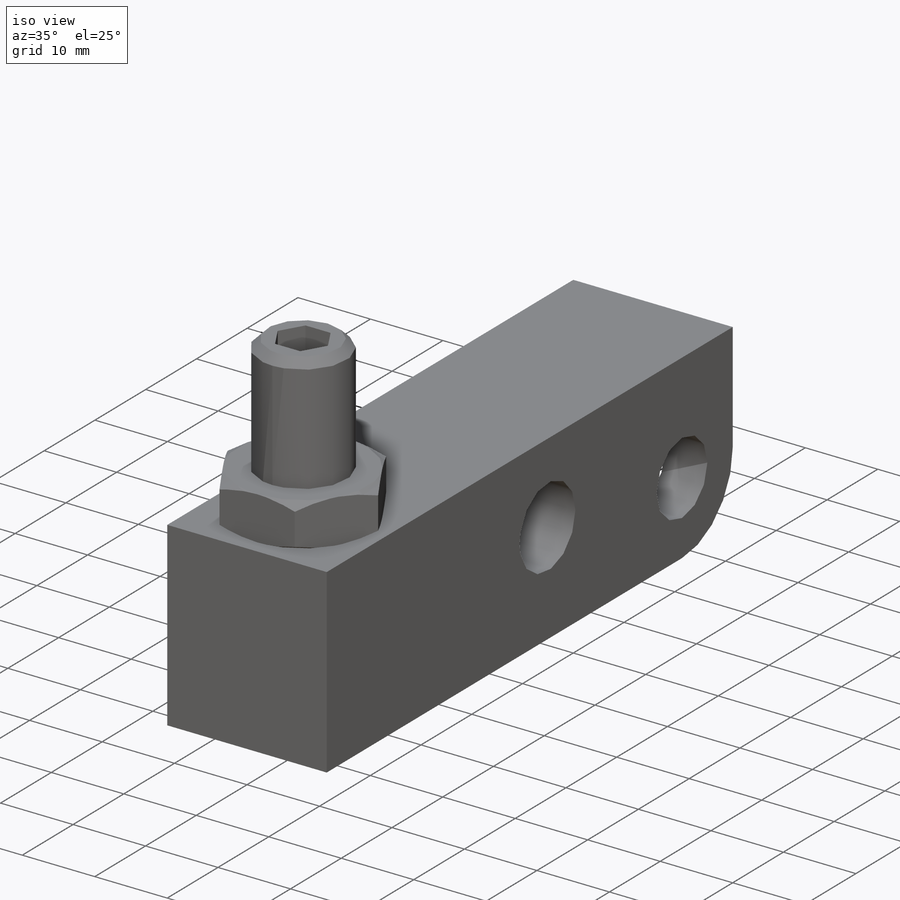
[diagram: iso view]
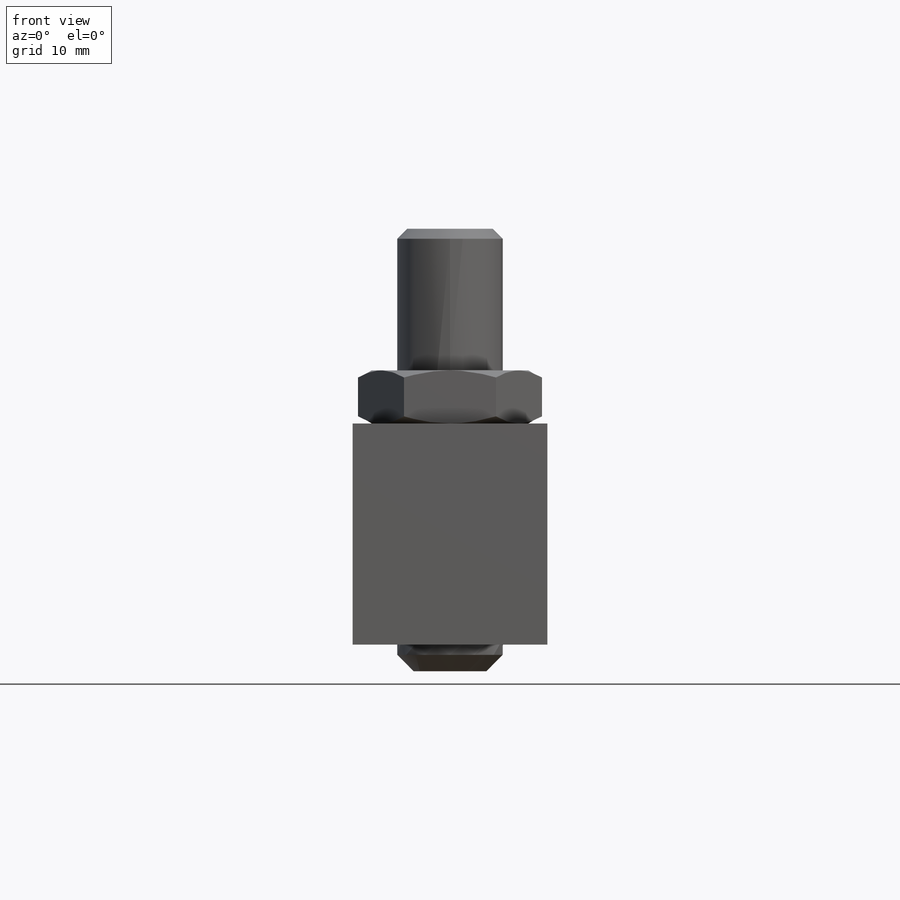
[diagram: front view]
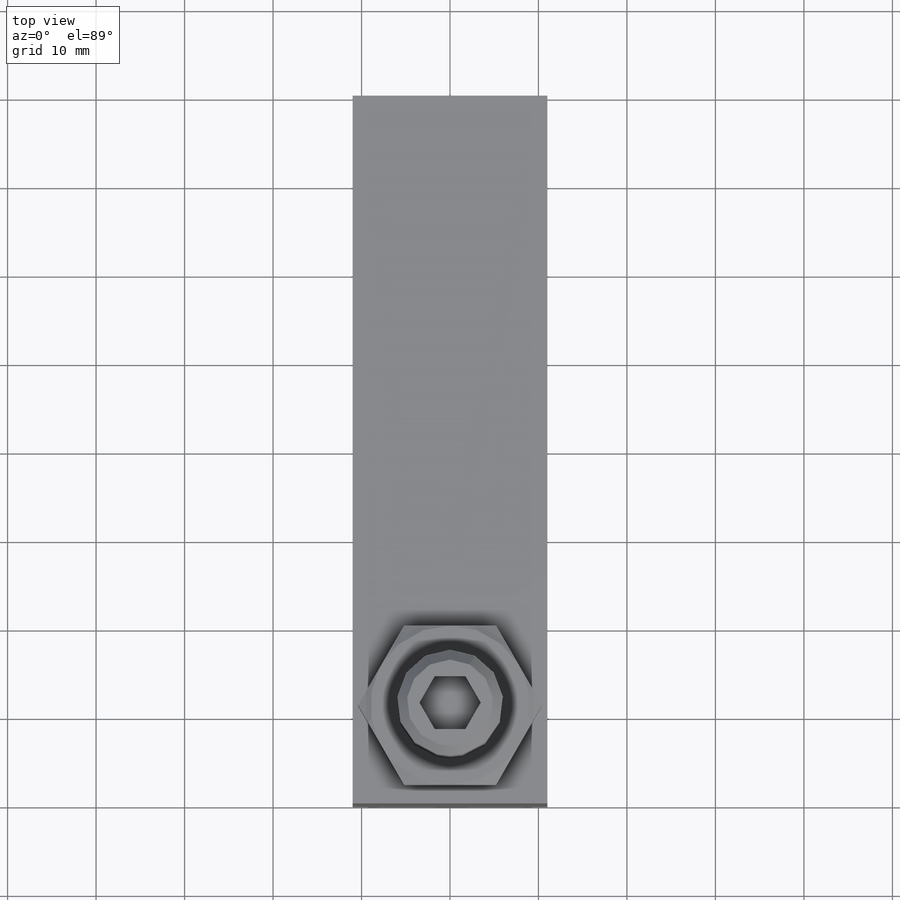
[diagram: top view]
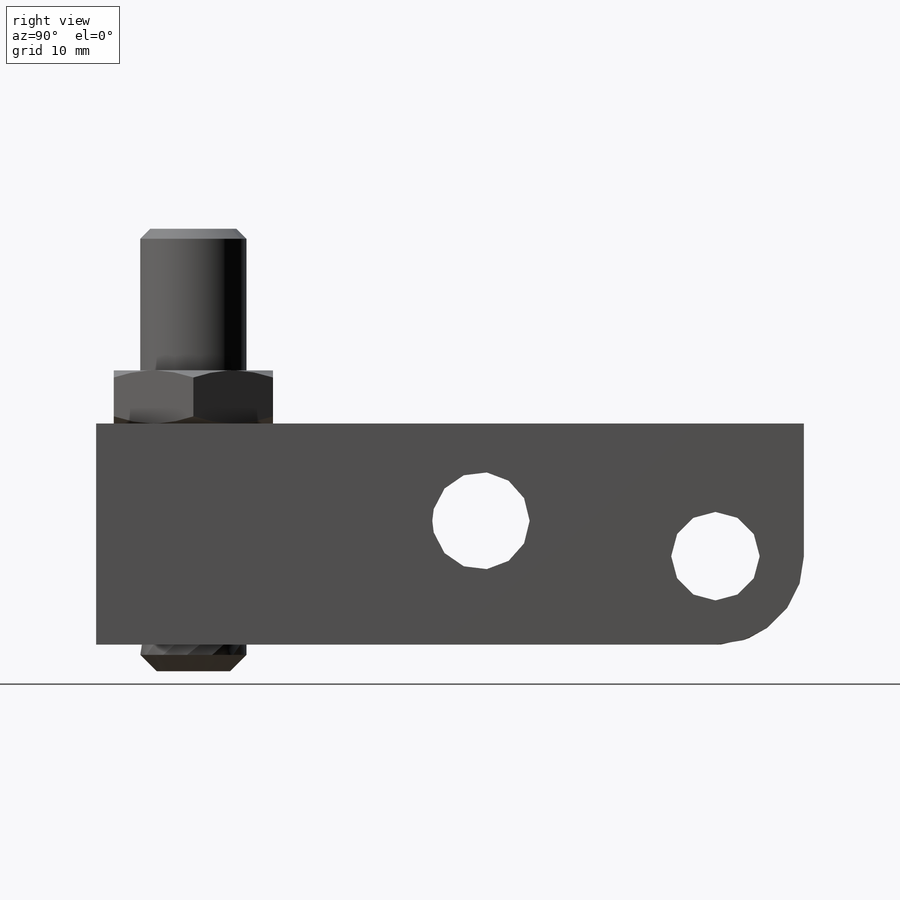
[diagram: right view]
SOLIDWORKS PART (.sldprt)
format: sldprt  version: not decoded by parser v0  size: 272,384 bytes
history: native  units: mm
features: sketch x7, cut_extrude x3, extrude x2, chamfer x2, material x1, fillet x1, revolve x1, cut_revolve x1 (+13 scaffold rows collapsed)
feature tree (31):
  scaffold x13  (default folders/planes/origin — collapsed)
  material  "AISI 1020"
  sketch  "S2D0001"  dims[D1=25.0mm D2=80.0mm]
  extrude  "Extrude1"  Depth=11mm
  sketch  "Sketch2"  dims[c1.D1=10.0mm c1.D4=11.0mm c1.D6=5.0mm c1.D5=5.0mm c1.D2=10.0mm c1.D3=10.0mm c2.D5=15.0mm c2.D6=4.0mm c3.D5=26.5mm]
  cut_extrude  "Cut-Extrude1"  Depth=100mm
  sketch  "Sketch5"  dims[c1.D3=2.65mm c1.D1=10.3mm c1.D2=5.85mm c2.D3=27.15mm]
  cut_extrude  "Cut-Extrude3"  Depth=22mm
  fillet  "Fillet2"  Radius=10mm
  sketch  "Sketch6"  dims[c1.D1=50.0mm c1.D2=69.0mm c1.D3=3.0mm c1.D4=12.0mm c1.D5=1.075mm c2.D5=45.0deg c2.D6=1.85mm c2.D7=25.0mm]
  revolve  "Revolve1"  Angle=360deg
  sketch  "Sketch8"  dims[D1=6.0mm]
  cut_extrude  "Cut-Extrude5"  Depth=4.8mm
  chamfer  "Chamfer1"  Distance=1.125mm Angle=45deg
  sketch  "Sketch10"  dims[D1=10.0mm D2=18.0mm]
  extrude  "Extrude2"  Depth=6mm
  sketch  "Sketch12"  dims[c1.D1=~3.155664mm c2.D1=30.0deg c2.D2=1.0mm]
  cut_revolve  "Cut-Revolve1"  Angle=360deg
  chamfer  "Chamfer2"  Distance=0.75mm Angle=45deg
decode coverage: 17 of 17 modeling features carry decoded parameters
note: ~ marks probable driven/reference dimensions
note: suppression state not decoded; provenance and decode notes live in map.json
